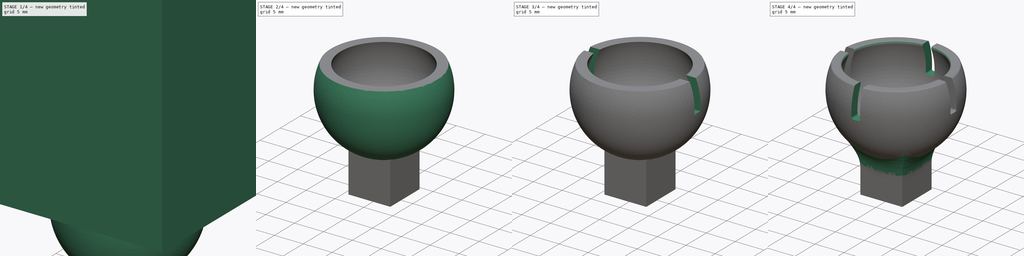
[diagram: build sequence overview — one tinted view per stage of 4, left to right]
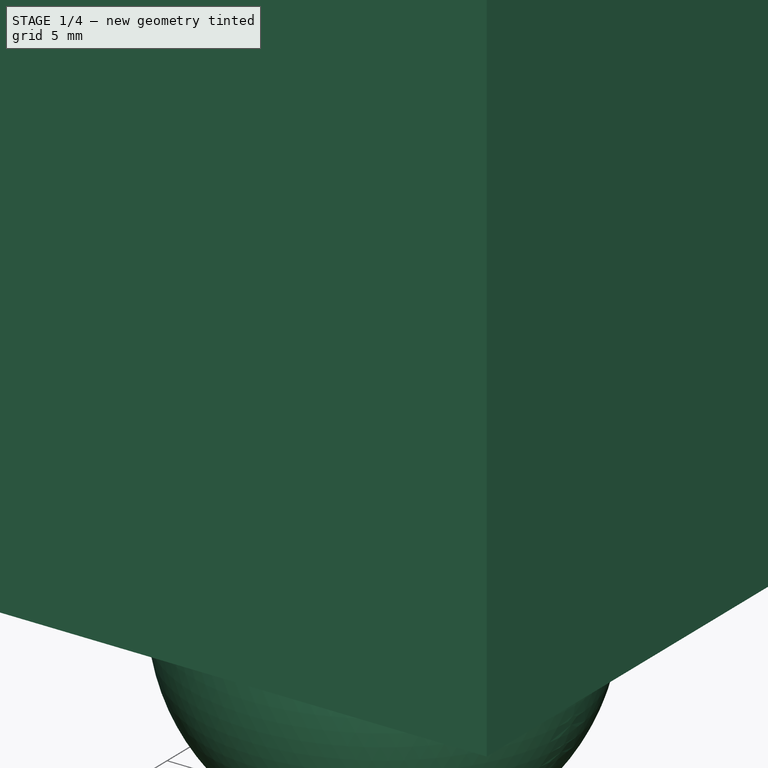
[diagram: stage 1 of 4 — iso view after this stage's code; geometry added in this stage tinted green]
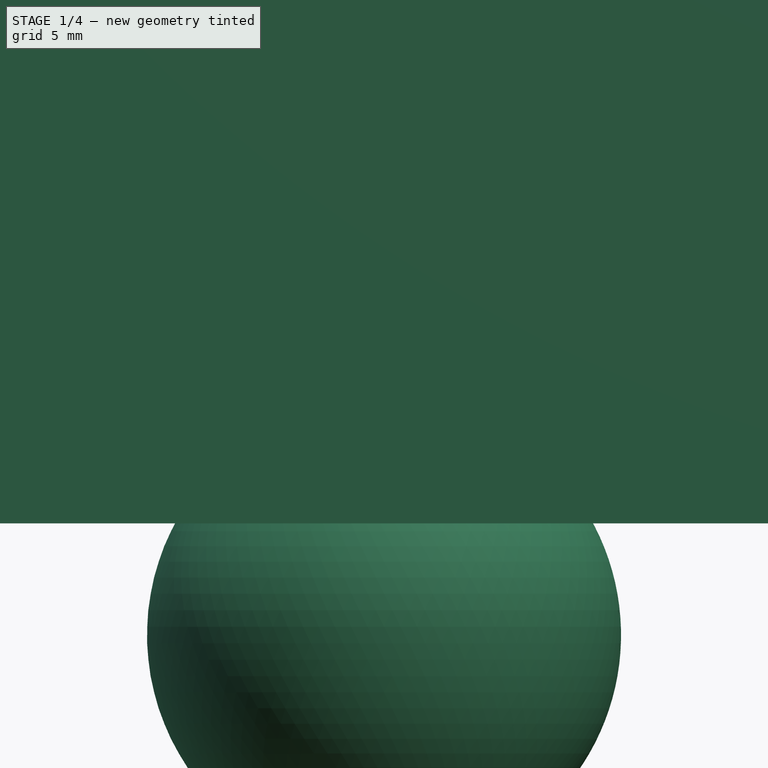
[diagram: stage 1 of 4 — front view after this stage's code; geometry added in this stage tinted green]
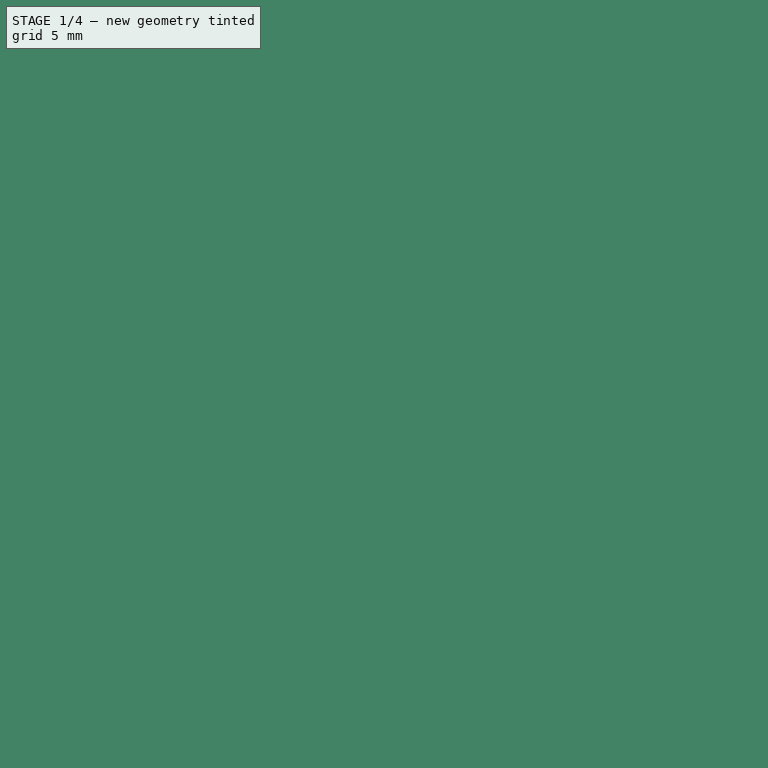
[diagram: stage 1 of 4 — top view after this stage's code; geometry added in this stage tinted green]
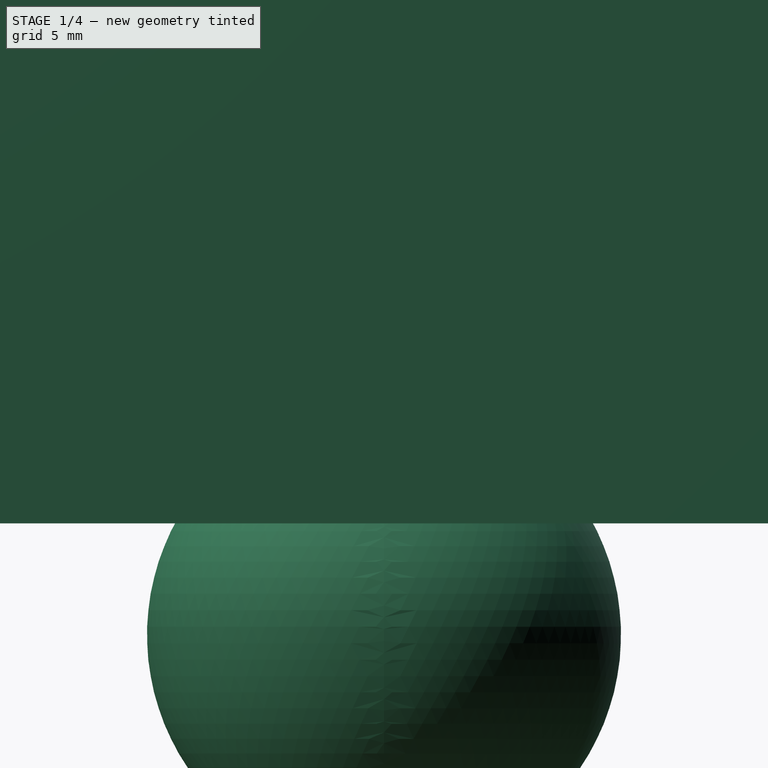
[diagram: stage 1 of 4 — right view after this stage's code; geometry added in this stage tinted green]
FCSTD DOCUMENT  (FreeCAD 0.16R)
Label: KetchupA116
License: All rights reserved
LicenseURL: http://en.wikipedia.org/wiki/All_rights_reserved
objects: Sketcher::SketchObject×5, PartDesign::Pocket×3, Part::Cut×2, PartDesign::Fillet×2, PartDesign::Pad×1, PartDesign::Revolution×1, Part::Sphere×1, Part::Box×1
note: 21 computed .brp shape members not serialized (recipe doc carries the construction recipe); baked Part::Feature solids carry a one-line shape summary decoded from their .brp

FEATURE [Sketcher::SketchObject] Sketch
  sketch-geometry (4):
    g0: LineSegment StartX=-3.625 StartY=3.625 StartZ=0 EndX=3.625 EndY=3.625 EndZ=0
    g1: LineSegment StartX=3.625 StartY=3.625 StartZ=0 EndX=3.625 EndY=-3.625 EndZ=0
    g2: LineSegment StartX=3.625 StartY=-3.625 StartZ=0 EndX=-3.625 EndY=-3.625 EndZ=0
    g3: LineSegment StartX=-3.625 StartY=-3.625 StartZ=0 EndX=-3.625 EndY=3.625 EndZ=0
  constraints (11):
    c: Coincident(g0,g1)
    c: Coincident(g1,g2)
    c: Coincident(g2,g3)
    c: Coincident(g3,g0)
    c: Horizontal(g0)
    c: Horizontal(g2)
    c: Vertical(g1)
    c: Vertical(g3)
    c: Symmetric(g1,g0,g-1)
    c: Equal(g1,g0)
    c: Distance(g1) = 7.25
FEATURE [PartDesign::Pad] Pad
  Length = 16
  Length2 = 100
  Sketch = -> Sketch
  Type = 0
FEATURE [Part::Sphere] Sphere
  Angle1 = -90
  Angle2 = 90
  Angle3 = 360
  Placement = pos=(0,0,16) rot=(0,0,1;0rad)
  Radius = 8.5
FEATURE [Part::Box] Box  label="Cube"
  Height = 30
  Length = 30
  Placement = pos=(-15,-15,20) rot=(0,0,1;0rad)
  Width = 30
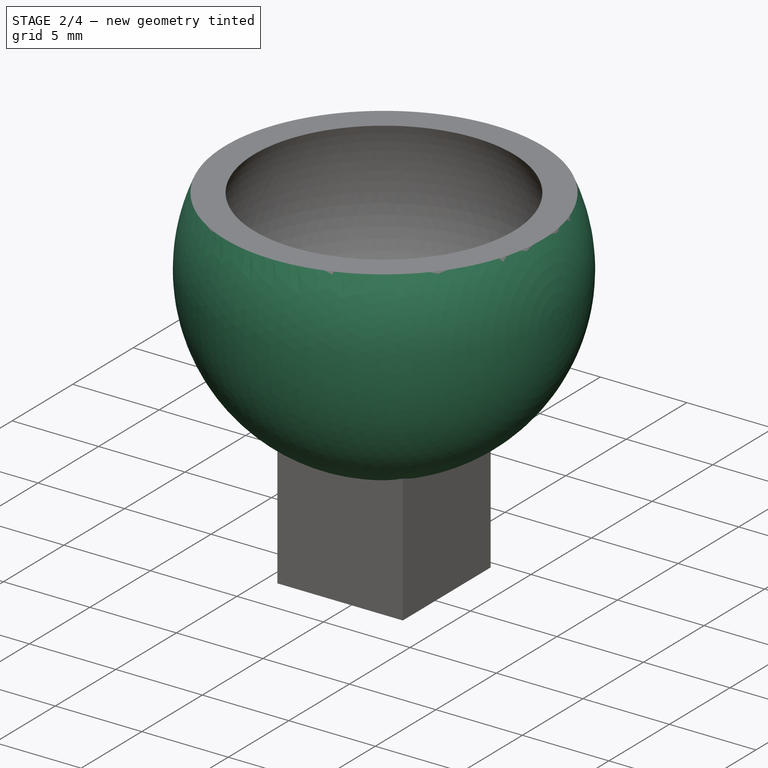
[diagram: stage 2 of 4 — iso view after this stage's code; geometry added in this stage tinted green]
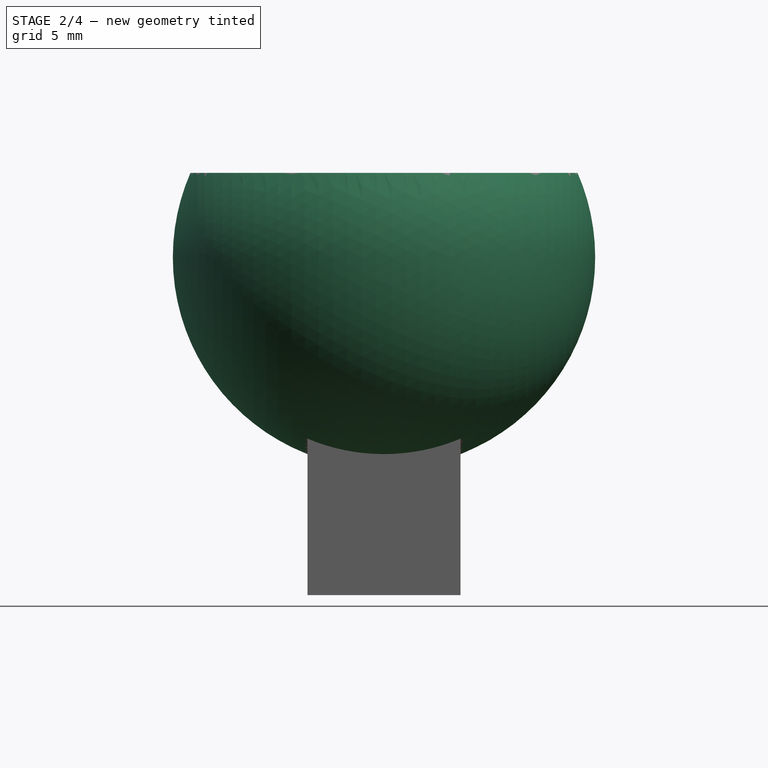
[diagram: stage 2 of 4 — front view after this stage's code; geometry added in this stage tinted green]
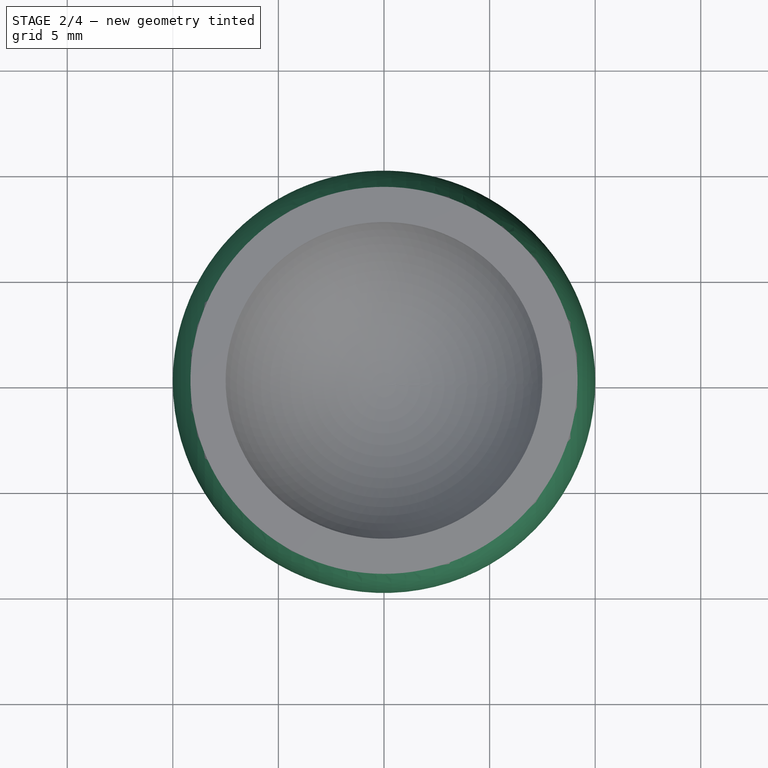
[diagram: stage 2 of 4 — top view after this stage's code; geometry added in this stage tinted green]
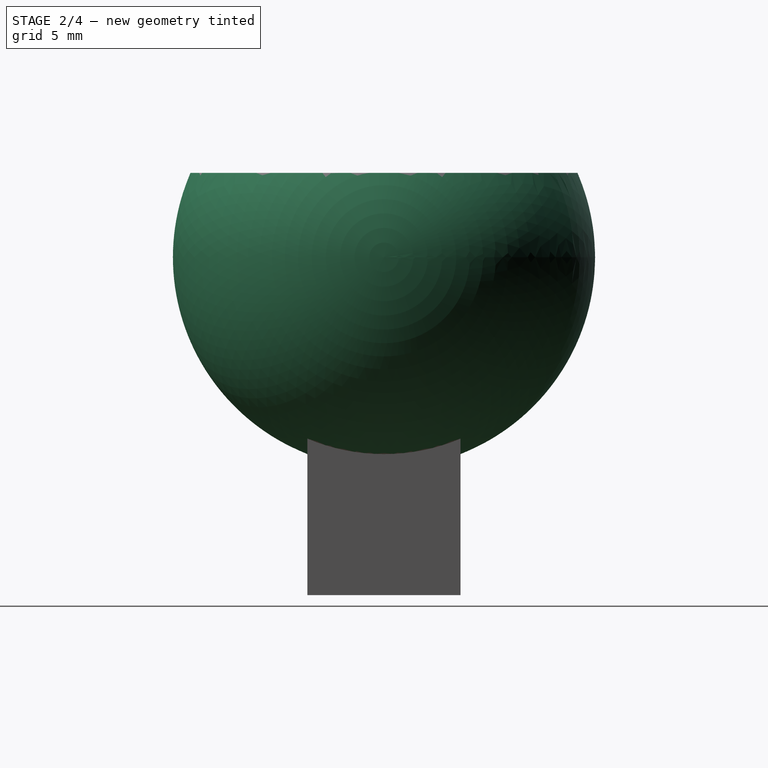
[diagram: stage 2 of 4 — right view after this stage's code; geometry added in this stage tinted green]
FEATURE [Sketcher::SketchObject] Sketch003
  Placement = pos=(0,0,16) rot=(0,0,1;0rad)
  Support = -> Pad [Face6]
  sketch-geometry (2):
    g0: ArcOfCircle CenterX=0 CenterY=0 CenterZ=0 NormalX=0 NormalY=0 NormalZ=1 Radius=10 StartAngle=0 EndAngle=3.14159
    g1: LineSegment StartX=-10 StartY=0 StartZ=0 EndX=10 EndY=0 EndZ=0
  constraints (6):
    c: Coincident(g0,g-1)
    c: PointOnObject(g0,g-1)
    c: PointOnObject(g0,g-1)
    c: Radius(g0) = 10
    c: Coincident(g1,g0)
    c: Coincident(g1,g0)
FEATURE [PartDesign::Revolution] Revolution
  Angle = 360
  Axis = (1,0,0)
  Base = (0,0,16)
  ReferenceAxis = -> Sketch003 [H_Axis]
  Reversed = true
  Sketch = -> Sketch003
FEATURE [Part::Cut] Cut
  Base = -> Revolution
  Tool = -> Sphere
FEATURE [Part::Cut] Cut001
  Base = -> Cut
  Tool = -> Box
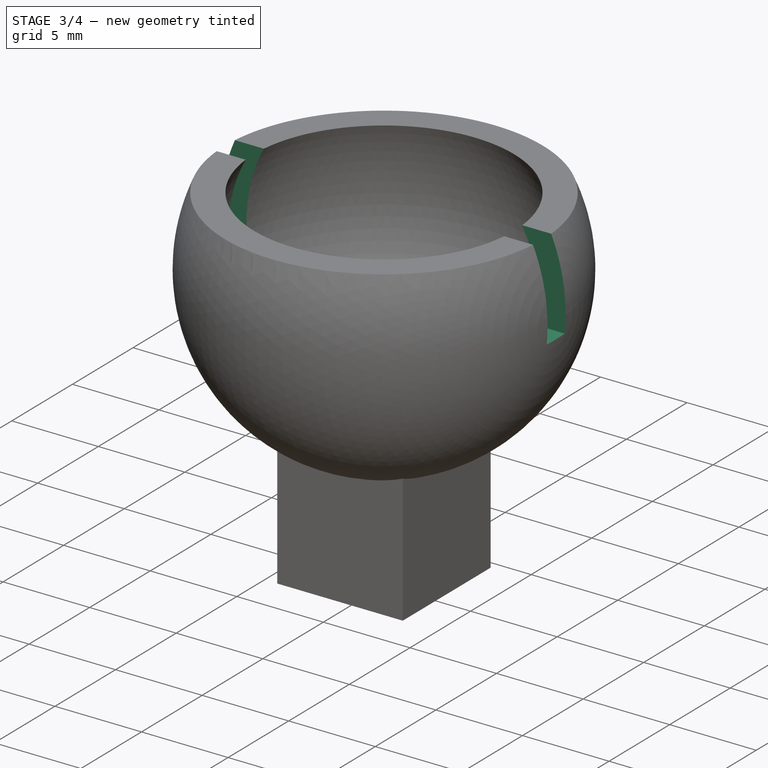
[diagram: stage 3 of 4 — iso view after this stage's code; geometry added in this stage tinted green]
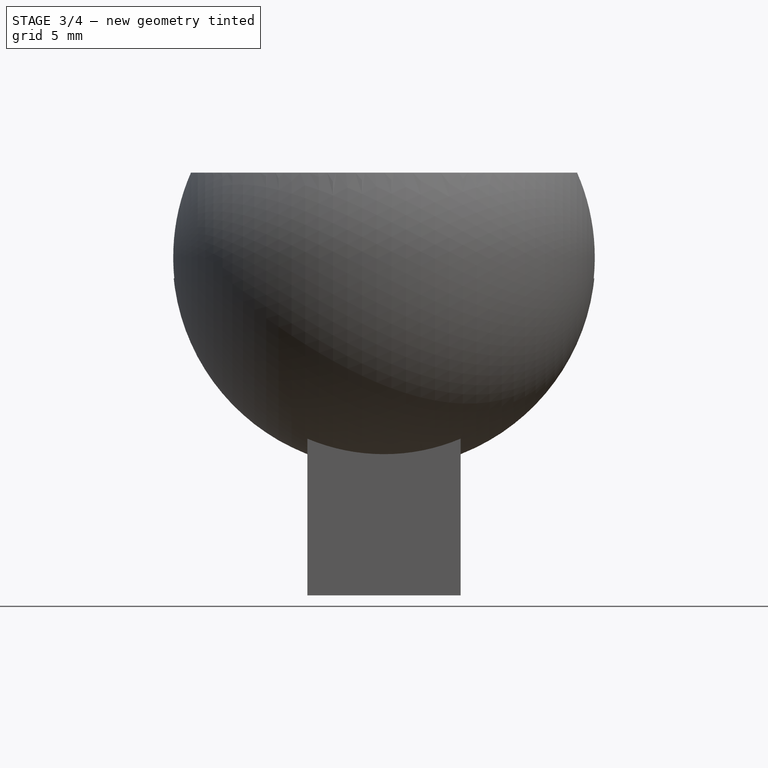
[diagram: stage 3 of 4 — front view after this stage's code; geometry added in this stage tinted green]
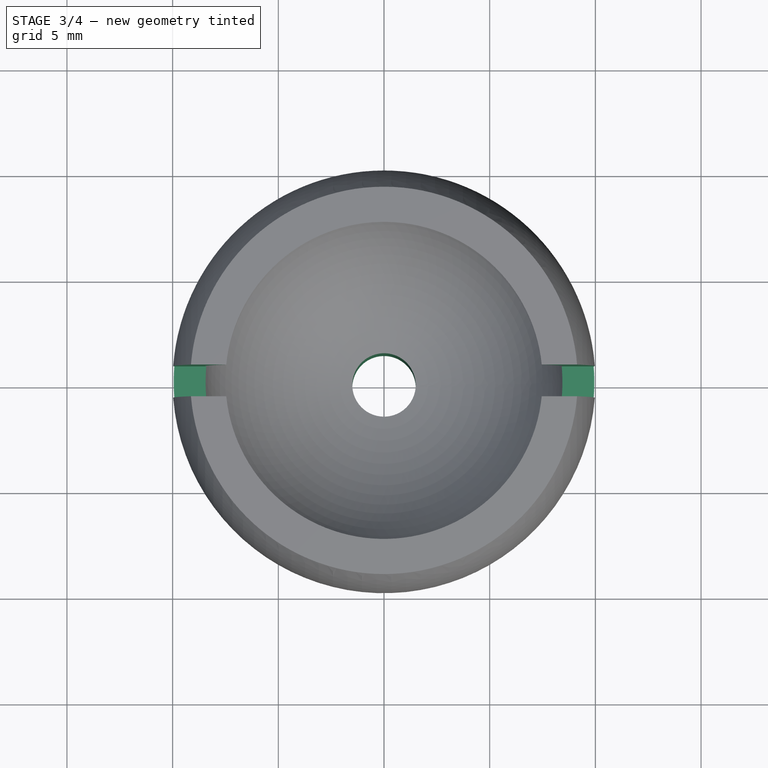
[diagram: stage 3 of 4 — top view after this stage's code; geometry added in this stage tinted green]
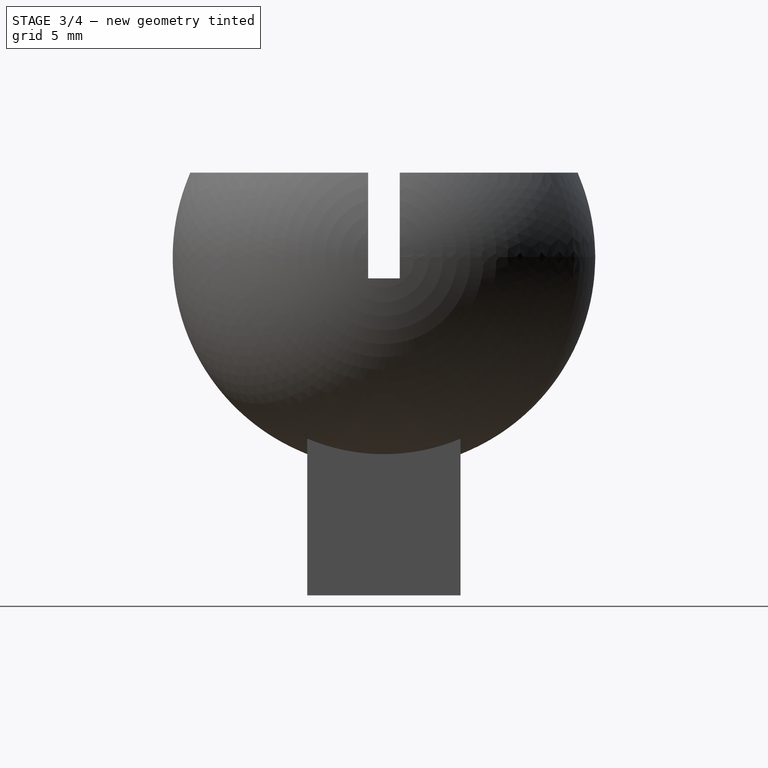
[diagram: stage 3 of 4 — right view after this stage's code; geometry added in this stage tinted green]
FEATURE [Sketcher::SketchObject] Sketch006
  Placement = pos=(0,0,20) rot=(0,0,1;0rad)
  Support = -> Cut001 [Face7]
  sketch-geometry (1):
    g0: Circle CenterX=0 CenterY=0 CenterZ=0 NormalX=0 NormalY=0 NormalZ=1 Radius=1.5
  constraints (2):
    c: Radius(g0) = 1.5
    c: Coincident(g0,g-1)
FEATURE [PartDesign::Pocket] Pocket
  Length = 5
  Sketch = -> Sketch006
  Type = 1
FEATURE [Sketcher::SketchObject] Sketch005
  Placement = pos=(0,0,20) rot=(0,0,1;0rad)
  Support = -> Pocket [Face9]
  sketch-geometry (4):
    g0: LineSegment StartX=-15.3059 StartY=0.75 StartZ=0 EndX=15.3059 EndY=0.75 EndZ=0
    g1: LineSegment StartX=15.3059 StartY=0.75 StartZ=0 EndX=15.3059 EndY=-0.75 EndZ=0
    g2: LineSegment StartX=15.3059 StartY=-0.75 StartZ=0 EndX=-15.3059 EndY=-0.75 EndZ=0
    g3: LineSegment StartX=-15.3059 StartY=-0.75 StartZ=0 EndX=-15.3059 EndY=0.75 EndZ=0
  constraints (10):
    c: Coincident(g0,g1)
    c: Coincident(g1,g2)
    c: Coincident(g2,g3)
    c: Coincident(g3,g0)
    c: Horizontal(g0)
    c: Horizontal(g2)
    c: Vertical(g1)
    c: Vertical(g3)
    c: Symmetric(g1,g0,g-1)
    c: Distance(g1) = 1.5
FEATURE [PartDesign::Pocket] Pocket001
  Length = 5
  Sketch = -> Sketch005
  Type = 0
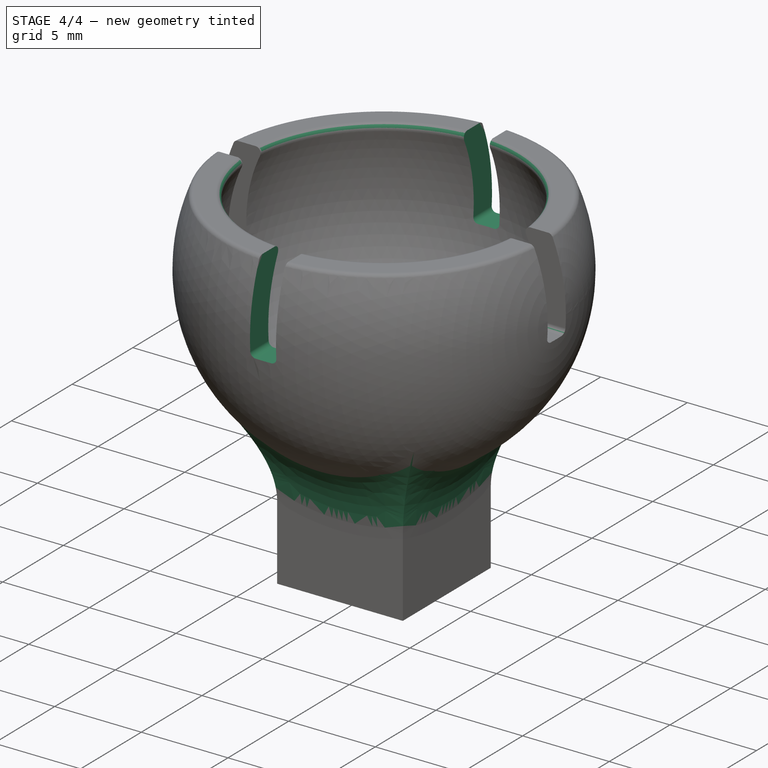
[diagram: stage 4 of 4 — iso view after this stage's code; geometry added in this stage tinted green]
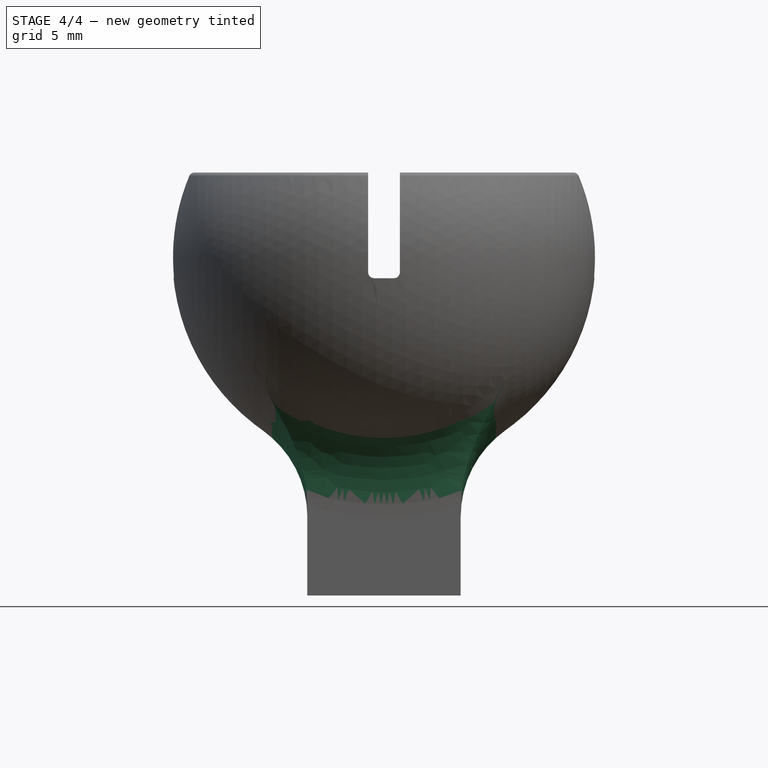
[diagram: stage 4 of 4 — front view after this stage's code; geometry added in this stage tinted green]
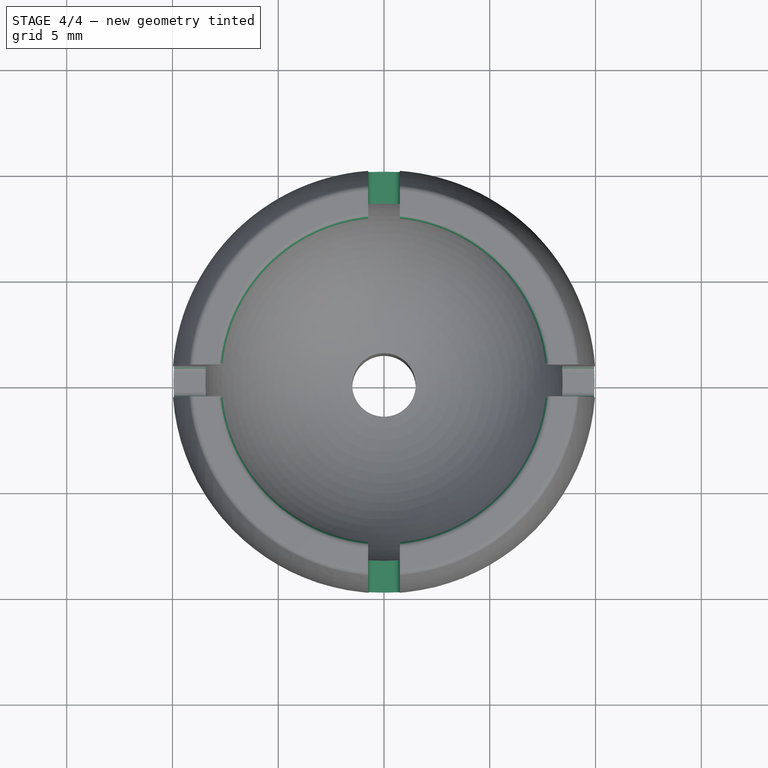
[diagram: stage 4 of 4 — top view after this stage's code; geometry added in this stage tinted green]
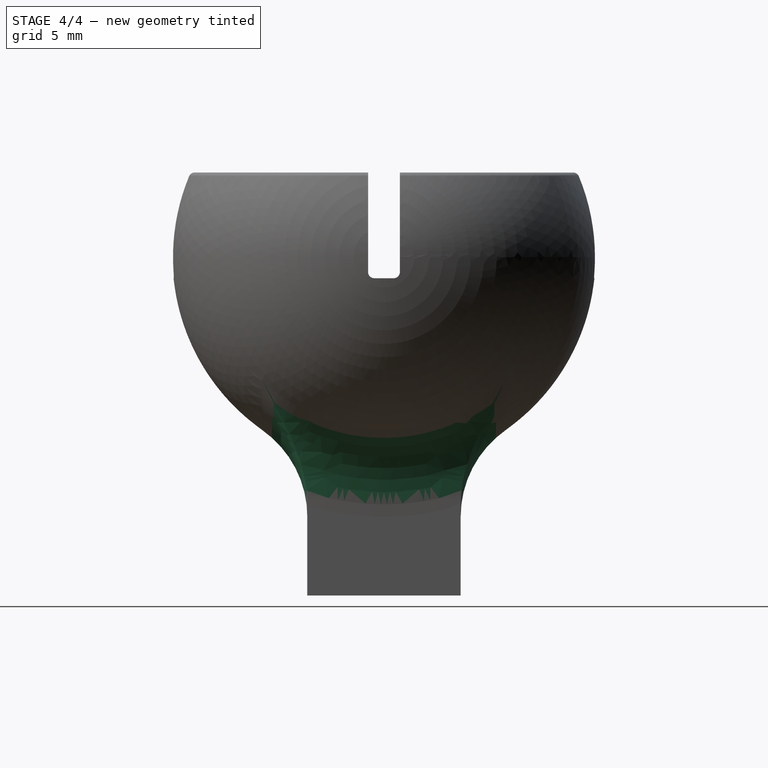
[diagram: stage 4 of 4 — right view after this stage's code; geometry added in this stage tinted green]
FEATURE [Sketcher::SketchObject] Sketch004
  Placement = pos=(0,0,20) rot=(0,0,1;0rad)
  Support = -> Pocket001 [Face17]
  sketch-geometry (4):
    g0: LineSegment StartX=-0.75 StartY=13.7981 StartZ=0 EndX=0.75 EndY=13.7981 EndZ=0
    g1: LineSegment StartX=0.75 StartY=13.7981 StartZ=0 EndX=0.75 EndY=-13.7981 EndZ=0
    g2: LineSegment StartX=0.75 StartY=-13.7981 StartZ=0 EndX=-0.75 EndY=-13.7981 EndZ=0
    g3: LineSegment StartX=-0.75 StartY=-13.7981 StartZ=0 EndX=-0.75 EndY=13.7981 EndZ=0
  constraints (11):
    c: Coincident(g0,g1)
    c: Coincident(g1,g2)
    c: Coincident(g2,g3)
    c: Coincident(g3,g0)
    c: Horizontal(g0)
    c: Horizontal(g2)
    c: Vertical(g1)
    c: Vertical(g3)
    c: Symmetric(g1,g2,g-2)
    c: Distance(g0) = 1.5
    c: Symmetric(g1,g0,g-1)
FEATURE [PartDesign::Pocket] Pocket002
  Length = 5
  Sketch = -> Sketch004
  Type = 0
FEATURE [PartDesign::Fillet] Fillet
  Base = -> Pocket002 [Edge39,Edge35,Edge47,Edge43,Edge71,Edge19,Edge23,Edge64,Edge67,Edge68,Edge53,Edge60,Edge51,Edge57,Edge61,Edge56]
  Radius = 0.29
FEATURE [PartDesign::Fillet] Fillet001
  Base = -> Fillet [Edge28,Edge26,Edge25,Edge27]
  Radius = 5
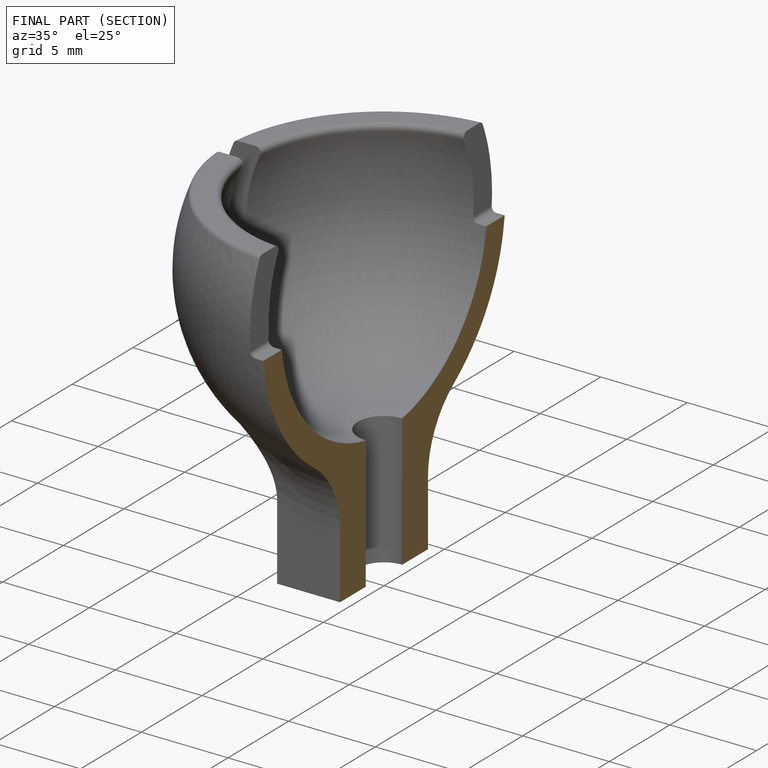
[diagram: finished part — half-section view (interior)]
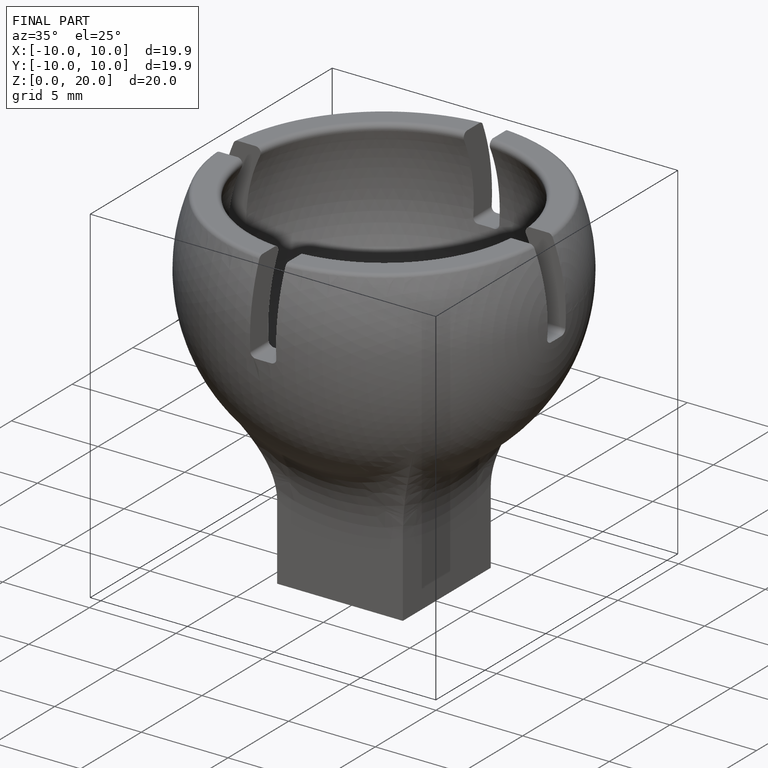
[diagram: finished part — iso view with bounding-box wireframe]
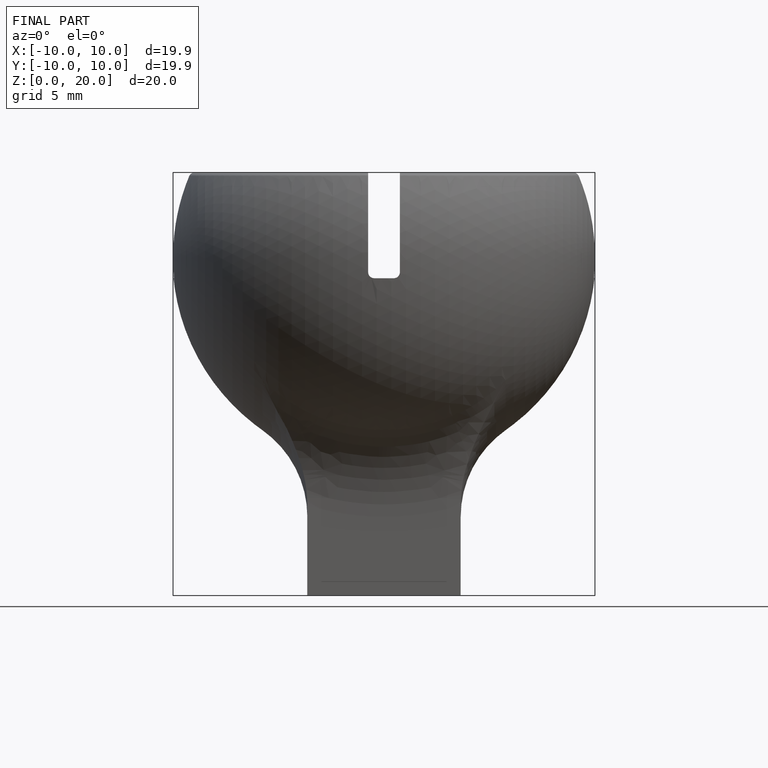
[diagram: finished part — front view with bounding-box wireframe]
